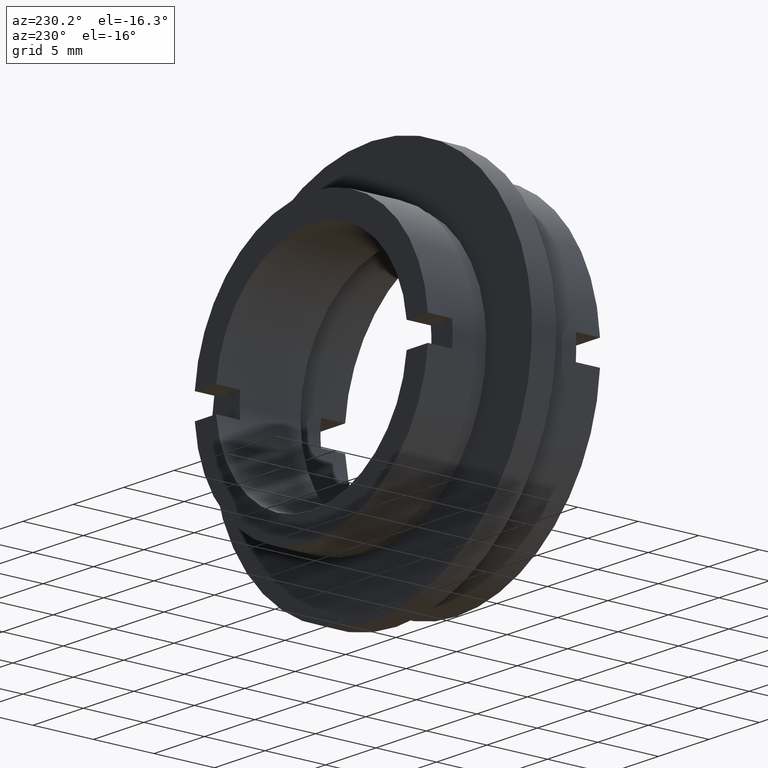
[diagram: clean part render]
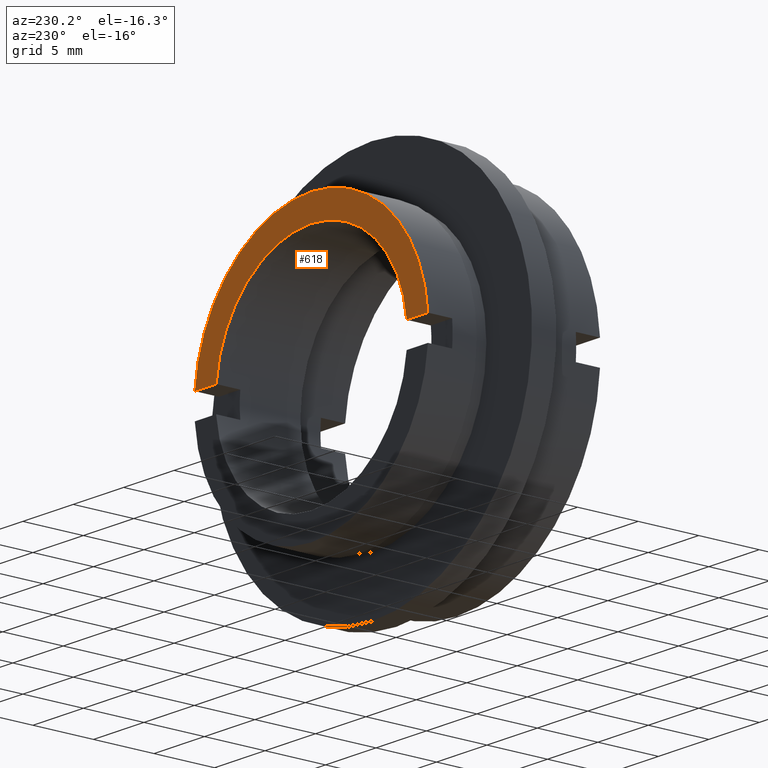
[diagram: same view with one face highlighted and labeled with its STEP entity id]
A machine part, auxiliary view. The second image highlights one B-rep face of the part: STEP entity #618.
In plain terms, the highlighted planar face has unit normal (-0, 1, 0).
Its self-contained STEP definition (entity closure, byte-faithful):
#58 = EDGE_CURVE ( 'NONE', #254, #1224, #878, .T. ) ;
#61 = CIRCLE ( 'NONE', #926, 9.499999999999998200 ) ;
#89 = AXIS2_PLACEMENT_3D ( 'NONE', #890, #458, #972 ) ;
#144 = EDGE_CURVE ( 'NONE', #1224, #1135, #1103, .T. ) ;
#173 = PLANE ( 'NONE',  #89 ) ;
#254 = VERTEX_POINT ( 'NONE', #938 ) ;
#350 = CARTESIAN_POINT ( 'NONE',  ( 0.0000000000000000000, 12.00000000000000000, 11.59999999999999800 ) ) ;
#365 = DIRECTION ( 'NONE',  ( 1.000000000000000000, 0.0000000000000000000, 0.0000000000000000000 ) ) ;
#384 = EDGE_CURVE ( 'NONE', #668, #1135, #1174, .T. ) ;
#389 = CARTESIAN_POINT ( 'NONE',  ( 0.0000000000000000000, 12.00000000000000000, 0.0000000000000000000 ) ) ;
#407 = AXIS2_PLACEMENT_3D ( 'NONE', #1124, #1115, #1100 ) ;
#422 = CARTESIAN_POINT ( 'NONE',  ( -9.499999999999998200, 12.00000000000000000, 1.000000000000001600 ) ) ;
#426 = ORIENTED_EDGE ( 'NONE', *, *, #988, .F. ) ;
#436 = CARTESIAN_POINT ( 'NONE',  ( 0.0000000000000000000, 12.00000000000000000, 0.0000000000000000000 ) ) ;
#454 = VECTOR ( 'NONE', #365, 1000.000000000000000 ) ;
#456 = FACE_OUTER_BOUND ( 'NONE', #807, .T. ) ;
#458 = DIRECTION ( 'NONE',  ( -0.0000000000000000000, 1.000000000000000000, 0.0000000000000000000 ) ) ;
#509 = AXIS2_PLACEMENT_3D ( 'NONE', #436, #785, #523 ) ;
#523 = DIRECTION ( 'NONE',  ( 0.0000000000000000000, 0.0000000000000000000, 1.000000000000000000 ) ) ;
#524 = DIRECTION ( 'NONE',  ( 0.0000000000000000000, 0.0000000000000000000, 1.000000000000000000 ) ) ;
#578 = CARTESIAN_POINT ( 'NONE',  ( 0.0000000000000000000, 12.00000000000000000, 0.0000000000000000000 ) ) ;
#618 = ADVANCED_FACE ( 'NONE', ( #456 ), #173, .T. ) ;
#622 = ORIENTED_EDGE ( 'NONE', *, *, #682, .F. ) ;
#668 = VERTEX_POINT ( 'NONE', #759 ) ;
#682 = EDGE_CURVE ( 'NONE', #254, #940, #763, .T. ) ;
#747 = DIRECTION ( 'NONE',  ( 0.0000000000000000000, 0.0000000000000000000, 1.000000000000000000 ) ) ;
#759 = CARTESIAN_POINT ( 'NONE',  ( 9.447221813845590800, 12.00000000000000000, 1.000000000000001600 ) ) ;
#763 = LINE ( 'NONE', #422, #454 ) ;
#785 = DIRECTION ( 'NONE',  ( -0.0000000000000000000, 1.000000000000000000, -0.0000000000000000000 ) ) ;
#788 = CARTESIAN_POINT ( 'NONE',  ( -9.447221813845590800, 12.00000000000000000, 1.000000000000001600 ) ) ;
#807 = EDGE_LOOP ( 'NONE', ( #622, #1080, #840, #1207, #426, #977 ) ) ;
#833 = DIRECTION ( 'NONE',  ( -0.0000000000000000000, 1.000000000000000000, -0.0000000000000000000 ) ) ;
#837 = CIRCLE ( 'NONE', #882, 9.499999999999998200 ) ;
#840 = ORIENTED_EDGE ( 'NONE', *, *, #144, .T. ) ;
#864 = DIRECTION ( 'NONE',  ( -0.0000000000000000000, 1.000000000000000000, -0.0000000000000000000 ) ) ;
#875 = DIRECTION ( 'NONE',  ( 1.000000000000000000, 0.0000000000000000000, 0.0000000000000000000 ) ) ;
#878 = CIRCLE ( 'NONE', #509, 11.59999999999999800 ) ;
#882 = AXIS2_PLACEMENT_3D ( 'NONE', #389, #833, #524 ) ;
#890 = CARTESIAN_POINT ( 'NONE',  ( -9.499999999999998200, 12.00000000000000000, 0.0000000000000000000 ) ) ;
#926 = AXIS2_PLACEMENT_3D ( 'NONE', #578, #864, #747 ) ;
#938 = CARTESIAN_POINT ( 'NONE',  ( -11.55681617055493000, 12.00000000000000000, 1.000000000000001600 ) ) ;
#940 = VERTEX_POINT ( 'NONE', #788 ) ;
#972 = DIRECTION ( 'NONE',  ( 0.0000000000000000000, 0.0000000000000000000, 1.000000000000000000 ) ) ;
#977 = ORIENTED_EDGE ( 'NONE', *, *, #1330, .F. ) ;
#986 = CARTESIAN_POINT ( 'NONE',  ( 11.55681617055493000, 12.00000000000000000, 1.000000000000001600 ) ) ;
#988 = EDGE_CURVE ( 'NONE', #1151, #668, #61, .T. ) ;
#1008 = CARTESIAN_POINT ( 'NONE',  ( 0.0000000000000000000, 12.00000000000000000, 9.499999999999998200 ) ) ;
#1080 = ORIENTED_EDGE ( 'NONE', *, *, #58, .T. ) ;
#1100 = DIRECTION ( 'NONE',  ( 0.0000000000000000000, 0.0000000000000000000, 1.000000000000000000 ) ) ;
#1103 = CIRCLE ( 'NONE', #407, 11.59999999999999800 ) ;
#1115 = DIRECTION ( 'NONE',  ( -0.0000000000000000000, 1.000000000000000000, -0.0000000000000000000 ) ) ;
#1124 = CARTESIAN_POINT ( 'NONE',  ( 0.0000000000000000000, 12.00000000000000000, 0.0000000000000000000 ) ) ;
#1135 = VERTEX_POINT ( 'NONE', #986 ) ;
#1140 = VECTOR ( 'NONE', #875, 1000.000000000000000 ) ;
#1151 = VERTEX_POINT ( 'NONE', #1008 ) ;
#1174 = LINE ( 'NONE', #1175, #1140 ) ;
#1175 = CARTESIAN_POINT ( 'NONE',  ( -9.499999999999998200, 12.00000000000000000, 1.000000000000001600 ) ) ;
#1207 = ORIENTED_EDGE ( 'NONE', *, *, #384, .F. ) ;
#1224 = VERTEX_POINT ( 'NONE', #350 ) ;
#1330 = EDGE_CURVE ( 'NONE', #940, #1151, #837, .T. ) ;